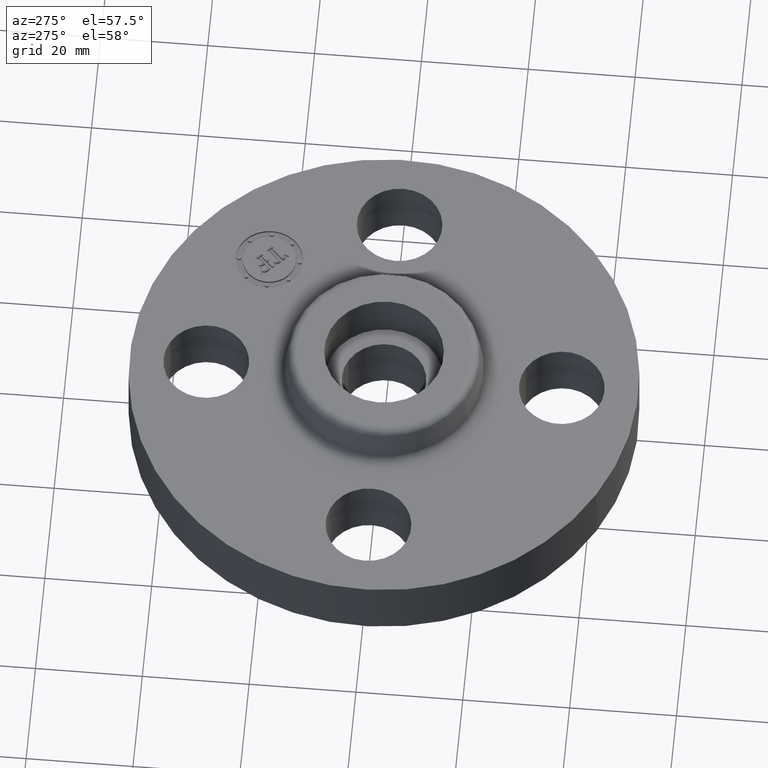
[diagram: clean part render]
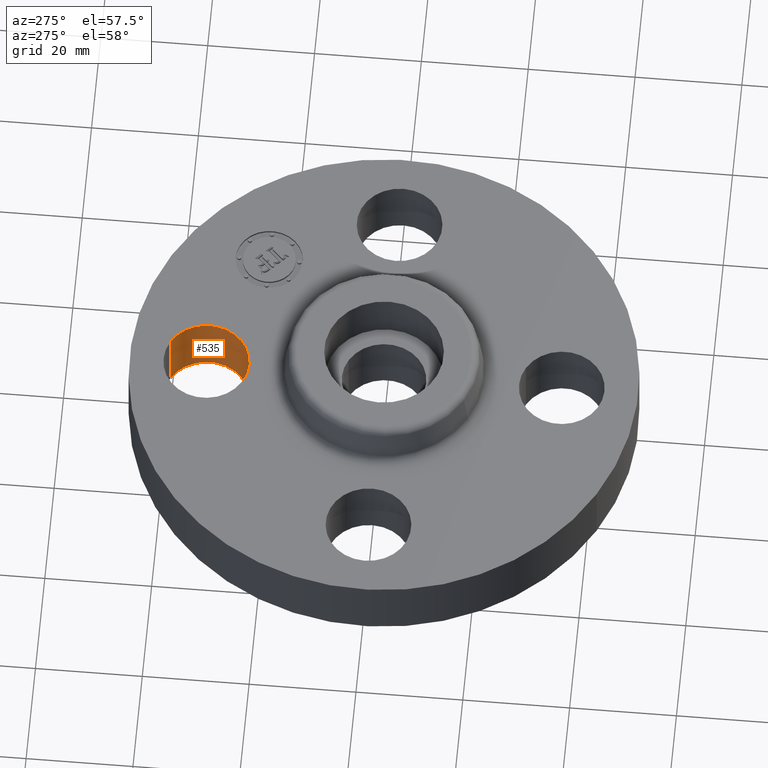
[diagram: same view with one face highlighted and labeled with its STEP entity id]
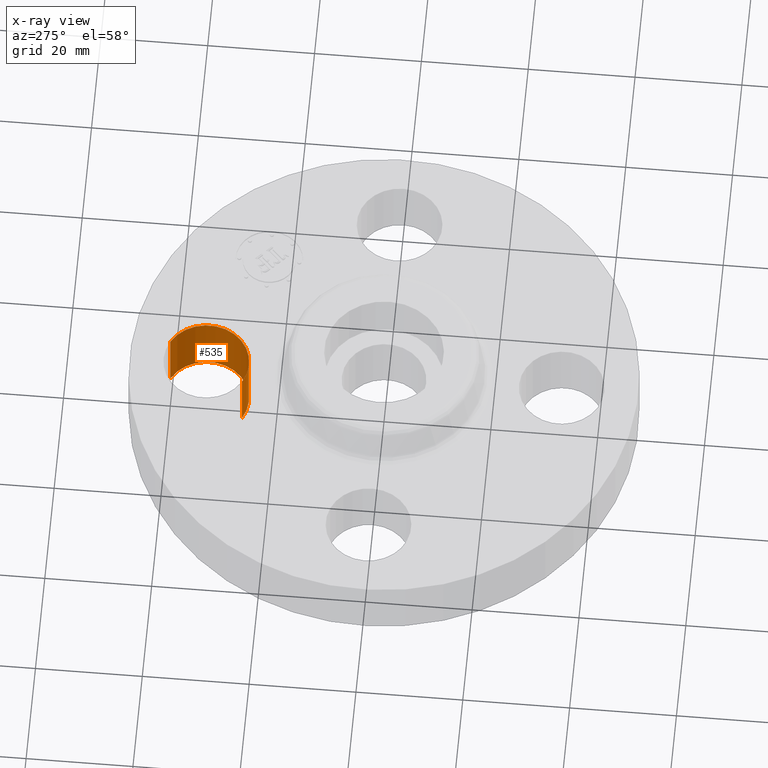
[diagram: x-ray of the same camera — body ghosted, the highlighted face saturated]
A machine part, auxiliary view. The second image highlights one B-rep face of the part: STEP entity #535.
The next image is the same camera in x-ray: the body ghosted, the highlighted face saturated — about 0% of this face is hidden behind the body in this view.
In plain terms, the highlighted cylindrical surface (partial cylindrical patch) has radius 8.001 mm, axis along (0, 0, -1).
Its self-contained STEP definition (entity closure, byte-faithful):
#283=AXIS2_PLACEMENT_3D('Circle Axis2P3D',#281,#282,$) ;
#508=AXIS2_PLACEMENT_3D('Cylinder Axis2P3D',#505,#506,#507) ;
#526=AXIS2_PLACEMENT_3D('Circle Axis2P3D',#524,#525,$) ;
#276=CARTESIAN_POINT('Vertex',(-0.151019044661,1.03356149301,0.)) ;
#278=CARTESIAN_POINT('Vertex',(0.151019044661,1.586438507,0.)) ;
#281=CARTESIAN_POINT('Axis2P3D Location',(-2.79741234551E-016,1.31000000001,0.)) ;
#505=CARTESIAN_POINT('Axis2P3D Location',(-2.40643096033E-016,1.31000000001,0.496062992128)) ;
#510=CARTESIAN_POINT('Line Origine',(0.151019044661,1.586438507,0.250000000001)) ;
#514=CARTESIAN_POINT('Vertex',(0.151019044661,1.586438507,0.500000000002)) ;
#517=CARTESIAN_POINT('Line Origine',(-0.151019044661,1.03356149301,0.250000000001)) ;
#521=CARTESIAN_POINT('Vertex',(-0.151019044661,1.03356149301,0.500000000002)) ;
#524=CARTESIAN_POINT('Axis2P3D Location',(-2.40643096033E-016,1.31000000001,0.500000000002)) ;
#282=DIRECTION('Axis2P3D Direction',(0.,0.,-0.0393700787402)) ;
#506=DIRECTION('Axis2P3D Direction',(0.,0.,-0.0393700787402)) ;
#507=DIRECTION('Axis2P3D XDirection',(-0.0188750212049,-0.0345504945626,-0.)) ;
#511=DIRECTION('Vector Direction',(0.,0.,-0.0393700787402)) ;
#518=DIRECTION('Vector Direction',(0.,0.,-0.0393700787402)) ;
#525=DIRECTION('Axis2P3D Direction',(0.,0.,-0.0393700787402)) ;
#512=VECTOR('Line Direction',#511,0.0393700787402) ;
#519=VECTOR('Line Direction',#518,0.0393700787402) ;
#530=ORIENTED_EDGE('',*,*,#516,.F.) ;
#531=ORIENTED_EDGE('',*,*,#285,.T.) ;
#532=ORIENTED_EDGE('',*,*,#523,.T.) ;
#533=ORIENTED_EDGE('',*,*,#528,.F.) ;
#535=ADVANCED_FACE('PartBody',(#534),#509,.F.) ;
#284=CIRCLE('generated circle',#283,0.315000000001) ;
#527=CIRCLE('generated circle',#526,0.315000000001) ;
#509=CYLINDRICAL_SURFACE('generated cylinder',#508,0.315000000001) ;
#285=EDGE_CURVE('',#279,#277,#284,.T.) ;
#516=EDGE_CURVE('',#279,#515,#513,.F.) ;
#523=EDGE_CURVE('',#277,#522,#520,.F.) ;
#528=EDGE_CURVE('',#515,#522,#527,.T.) ;
#529=EDGE_LOOP('',(#530,#531,#532,#533)) ;
#534=FACE_OUTER_BOUND('',#529,.T.) ;
#513=LINE('Line',#510,#512) ;
#520=LINE('Line',#517,#519) ;
#277=VERTEX_POINT('',#276) ;
#279=VERTEX_POINT('',#278) ;
#515=VERTEX_POINT('',#514) ;
#522=VERTEX_POINT('',#521) ;